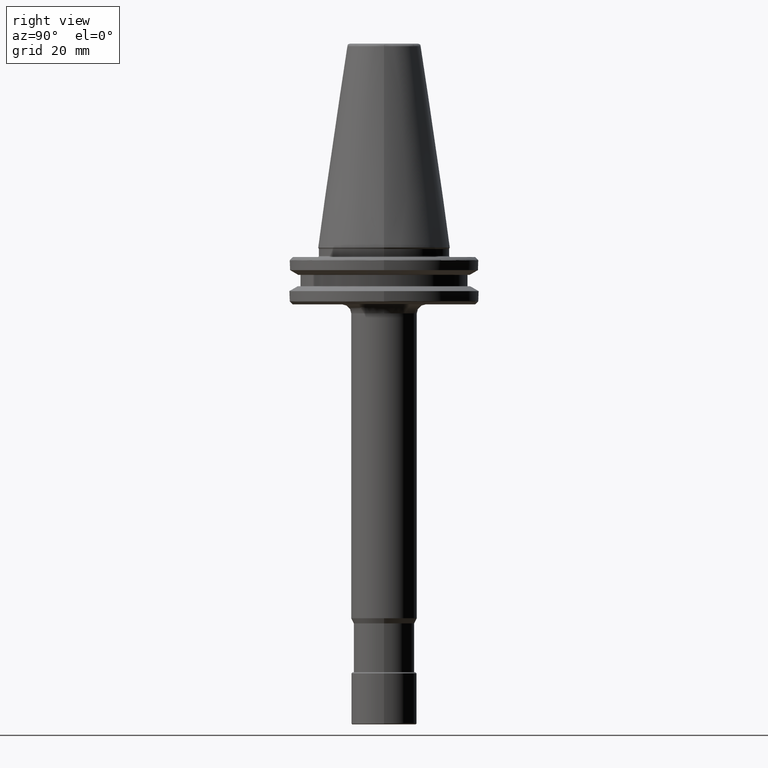
[diagram: clean part render]
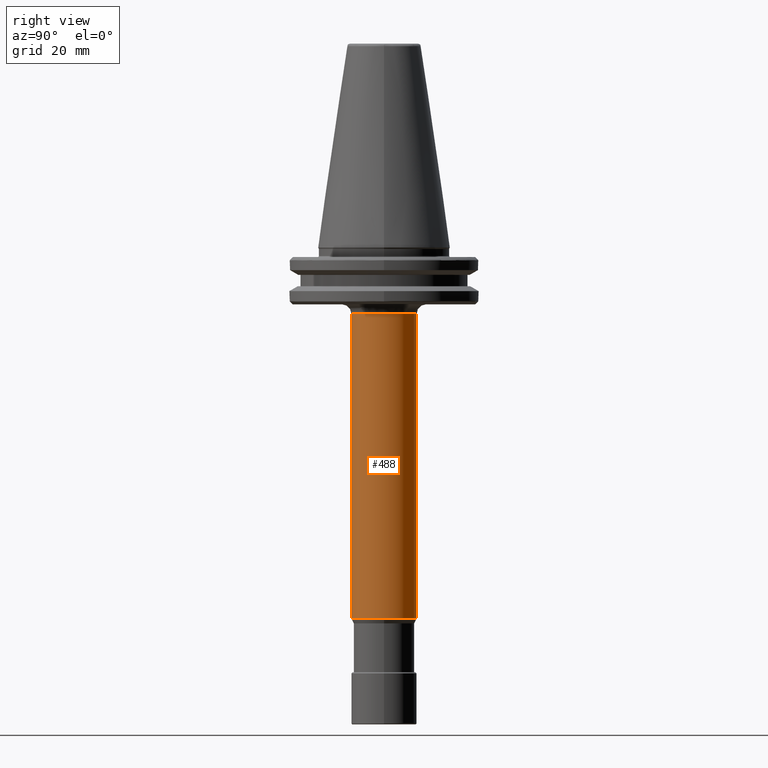
[diagram: same view with one face highlighted and labeled with its STEP entity id]
A machine part, right view. The second image highlights one B-rep face of the part: STEP entity #488.
In plain terms, the highlighted cylindrical surface (edge-blend (fillet) strip) has radius 11 mm, axis along (0, -0, 1).
Its self-contained STEP definition (entity closure, byte-faithful):
#35 = AXIS2_PLACEMENT_3D ( 'NONE', #541, #188, #2192 ) ;
#188 = DIRECTION ( 'NONE',  ( 0.0000000000000000000, -6.308085367188390200E-016, 1.000000000000000000 ) ) ;
#244 = EDGE_CURVE ( 'NONE', #2576, #2811, #271, .T. ) ;
#268 = CARTESIAN_POINT ( 'NONE',  ( 1.347111479062092300E-015, 11.00000000000000000, -124.4000000000000600 ) ) ;
#271 = LINE ( 'NONE', #1025, #686 ) ;
#304 = VERTEX_POINT ( 'NONE', #3162 ) ;
#353 = CARTESIAN_POINT ( 'NONE',  ( 1.347111479062088400E-015, 10.99999999999993600, -22.10000000000000100 ) ) ;
#434 = CARTESIAN_POINT ( 'NONE',  ( 10.99999999999997300, 0.0000000000000000000, -124.4000000000000600 ) ) ;
#445 = ORIENTED_EDGE ( 'NONE', *, *, #1663, .F. ) ;
#488 = ADVANCED_FACE ( 'NONE', ( #802 ), #555, .T. ) ;
#498 = ORIENTED_EDGE ( 'NONE', *, *, #3315, .T. ) ;
#500 = CIRCLE ( 'NONE', #1174, 11.00000000000000000 ) ;
#541 = CARTESIAN_POINT ( 'NONE',  ( 0.0000000000000000000, 0.0000000000000000000, -124.4000000000000100 ) ) ;
#555 = CYLINDRICAL_SURFACE ( 'NONE', #35, 11.00000000000000000 ) ;
#682 = DIRECTION ( 'NONE',  ( 0.0000000000000000000, -6.308085367188390200E-016, 1.000000000000000000 ) ) ;
#686 = VECTOR ( 'NONE', #682, 1000.000000000000000 ) ;
#771 = DIRECTION ( 'NONE',  ( 1.000000000000000000, 0.0000000000000000000, 5.046468293750711400E-015 ) ) ;
#783 = DIRECTION ( 'NONE',  ( 1.000000000000000000, 0.0000000000000000000, 0.0000000000000000000 ) ) ;
#802 = FACE_OUTER_BOUND ( 'NONE', #2417, .T. ) ;
#827 = CIRCLE ( 'NONE', #2170, 11.00000000000000000 ) ;
#867 = DIRECTION ( 'NONE',  ( 0.0000000000000000000, 0.0000000000000000000, 1.000000000000000000 ) ) ;
#879 = VERTEX_POINT ( 'NONE', #2000 ) ;
#888 = EDGE_CURVE ( 'NONE', #879, #304, #3207, .T. ) ;
#1025 = CARTESIAN_POINT ( 'NONE',  ( 1.347111479062088400E-015, 11.00000000000000000, -124.4000000000000100 ) ) ;
#1174 = AXIS2_PLACEMENT_3D ( 'NONE', #2199, #2725, #783 ) ;
#1274 = VERTEX_POINT ( 'NONE', #434 ) ;
#1327 = CARTESIAN_POINT ( 'NONE',  ( 0.0000000000000000000, 0.0000000000000000000, -124.4000000000000600 ) ) ;
#1359 = DIRECTION ( 'NONE',  ( 0.0000000000000000000, -6.308085367188390200E-016, 1.000000000000000000 ) ) ;
#1592 = DIRECTION ( 'NONE',  ( 1.000000000000000000, 0.0000000000000000000, 5.046468293750711400E-015 ) ) ;
#1663 = EDGE_CURVE ( 'NONE', #1867, #2811, #3153, .T. ) ;
#1713 = AXIS2_PLACEMENT_3D ( 'NONE', #2787, #867, #1858 ) ;
#1735 = VECTOR ( 'NONE', #1359, 1000.000000000000000 ) ;
#1784 = ORIENTED_EDGE ( 'NONE', *, *, #2379, .T. ) ;
#1832 = AXIS2_PLACEMENT_3D ( 'NONE', #1327, #3095, #1592 ) ;
#1858 = DIRECTION ( 'NONE',  ( 1.000000000000000000, 0.0000000000000000000, 0.0000000000000000000 ) ) ;
#1867 = VERTEX_POINT ( 'NONE', #3131 ) ;
#2000 = CARTESIAN_POINT ( 'NONE',  ( 0.0000000000000000000, -11.00000000000000000, -124.4000000000000600 ) ) ;
#2119 = DIRECTION ( 'NONE',  ( 0.0000000000000000000, 0.0000000000000000000, 1.000000000000000000 ) ) ;
#2170 = AXIS2_PLACEMENT_3D ( 'NONE', #2324, #2119, #771 ) ;
#2192 = DIRECTION ( 'NONE',  ( 0.0000000000000000000, -1.000000000000000000, 0.0000000000000000000 ) ) ;
#2199 = CARTESIAN_POINT ( 'NONE',  ( 0.0000000000000000000, 0.0000000000000000000, -22.10000000000000100 ) ) ;
#2241 = CARTESIAN_POINT ( 'NONE',  ( 0.0000000000000000000, -11.00000000000000000, -124.4000000000000100 ) ) ;
#2324 = CARTESIAN_POINT ( 'NONE',  ( 0.0000000000000000000, 0.0000000000000000000, -124.4000000000000600 ) ) ;
#2339 = CIRCLE ( 'NONE', #1832, 11.00000000000000000 ) ;
#2358 = EDGE_CURVE ( 'NONE', #304, #1867, #500, .T. ) ;
#2379 = EDGE_CURVE ( 'NONE', #1274, #2576, #827, .T. ) ;
#2417 = EDGE_LOOP ( 'NONE', ( #498, #1784, #2816, #445, #2633, #3378 ) ) ;
#2576 = VERTEX_POINT ( 'NONE', #268 ) ;
#2633 = ORIENTED_EDGE ( 'NONE', *, *, #2358, .F. ) ;
#2725 = DIRECTION ( 'NONE',  ( 0.0000000000000000000, 0.0000000000000000000, 1.000000000000000000 ) ) ;
#2787 = CARTESIAN_POINT ( 'NONE',  ( 0.0000000000000000000, 0.0000000000000000000, -22.10000000000000100 ) ) ;
#2811 = VERTEX_POINT ( 'NONE', #353 ) ;
#2816 = ORIENTED_EDGE ( 'NONE', *, *, #244, .T. ) ;
#3095 = DIRECTION ( 'NONE',  ( 0.0000000000000000000, 0.0000000000000000000, 1.000000000000000000 ) ) ;
#3131 = CARTESIAN_POINT ( 'NONE',  ( 10.99999999996942700, -4.938649563580315600E-010, -22.10000000000000100 ) ) ;
#3153 = CIRCLE ( 'NONE', #1713, 11.00000000000000000 ) ;
#3162 = CARTESIAN_POINT ( 'NONE',  ( 0.0000000000000000000, -11.00000000000006400, -22.10000000000000100 ) ) ;
#3207 = LINE ( 'NONE', #2241, #1735 ) ;
#3315 = EDGE_CURVE ( 'NONE', #879, #1274, #2339, .T. ) ;
#3378 = ORIENTED_EDGE ( 'NONE', *, *, #888, .F. ) ;